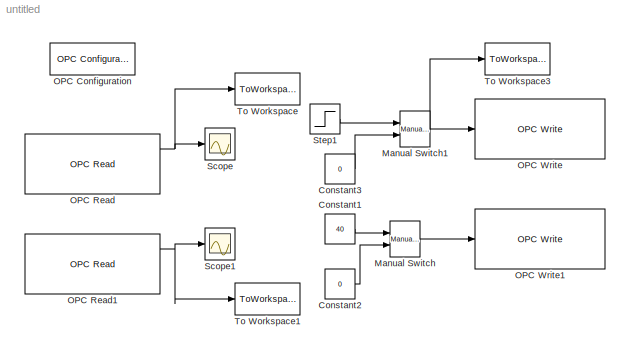
MODEL untitled
KIND model
BLOCK [Constant] Constant1
  SID = 16
  Value = 40
BLOCK [Constant] Constant2
  SID = 19
  Value = 0
BLOCK [Constant] Constant3
  SID = 21
  Value = 0
BLOCK [Reference] Manual Switch  REF=simulink/Signal\nRouting/Manual Switch
  FunctionWithSeparateData = off
  GeneratePreprocessorConditionals = off
  Ports = [2, 1]
  RTWMemSecDataConstants = Inherit from model
  RTWMemSecDataInternal = Inherit from model
  RTWMemSecDataParameters = Inherit from model
  RTWMemSecFuncExecute = Inherit from model
  RTWMemSecFuncInitTerm = Inherit from model
  SID = 18
  ShowPortLabels = FromPortIcon
  SourceBlock = simulink/Signal\nRouting/Manual Switch
  SourceType = Manual Switch
  SystemSampleTime = -1
  action = 0
  sw = 0
  varsize = off
BLOCK [Reference] Manual Switch1  REF=simulink/Signal\nRouting/Manual Switch
  FunctionWithSeparateData = off
  GeneratePreprocessorConditionals = off
  Ports = [2, 1]
  RTWMemSecDataConstants = Inherit from model
  RTWMemSecDataInternal = Inherit from model
  RTWMemSecDataParameters = Inherit from model
  RTWMemSecFuncExecute = Inherit from model
  RTWMemSecFuncInitTerm = Inherit from model
  SID = 20
  ShowPortLabels = FromPortIcon
  SourceBlock = simulink/Signal\nRouting/Manual Switch
  SourceType = Manual Switch
  SystemSampleTime = -1
  action = 0
  sw = 0
  varsize = off
BLOCK [Reference] OPC Configuration  REF=opclib/OPC Configuration
  Ports = []
  SID = 1
  SourceBlock = opclib/OPC Configuration
  SourceType = OPC Configuration
  beingUsed = on
  errMissingItems = Error
  errRTViolation = Warn
  errReadWrite = Warn
  errShutdown = Error
  opcServers = localhost/OPCServer.WinCC/10
  rtEnable = on
  showLatency = off
  speedup = 1
BLOCK [Reference] OPC Read  REF=opclib/OPC Read
  Ports = [0, 3]
  SID = 2
  SourceBlock = opclib/OPC Read
  SourceType = OPC Read
  dataType = double
  itemIDs = shuiwei1
  readMode = Synchronous (cache)
  serverHost = localhost
  serverID = OPCServer.WinCC
  showQual = on
  showTS = on
  tsMode = Seconds since start
  updateRate = 0.5
BLOCK [Reference] OPC Read1  REF=opclib/OPC Read
  Ports = [0, 3]
  SID = 6
  SourceBlock = opclib/OPC Read
  SourceType = OPC Read
  dataType = double
  itemIDs = shuiwei2
  readMode = Synchronous (cache)
  serverHost = localhost
  serverID = OPCServer.WinCC
  showQual = on
  showTS = on
  tsMode = Seconds since start
  updateRate = 0.5
BLOCK [Reference] OPC Write  REF=opclib/OPC Write
  Ports = [1]
  SID = 3
  SourceBlock = opclib/OPC Write
  SourceType = OPC Write
  itemIDs = beng1
  serverHost = localhost
  serverID = OPCServer.WinCC
  updateRate = 0
  writeMode = Synchronous
BLOCK [Reference] OPC Write1  REF=opclib/OPC Write
  Ports = [1]
  SID = 8
  SourceBlock = opclib/OPC Write
  SourceType = OPC Write
  itemIDs = beng2
  serverHost = localhost
  serverID = OPCServer.WinCC
  updateRate = 0
  writeMode = Synchronous
BLOCK [Scope] Scope
  DataFormat = StructureWithTime
  Floating = off
  NumInputPorts = 1
  Ports = [1]
  SID = 5
  SampleTime = 0
  TimeRange = 100
  YMax = 30
  YMin = 0
BLOCK [Scope] Scope1
  DataFormat = StructureWithTime
  Floating = off
  NumInputPorts = 1
  Ports = [1]
  SID = 7
  SampleTime = 0
  SaveName = ScopeData1
  TimeRange = 100
  YMax = 30
  YMin = 0
BLOCK [Step] Step1
  After = 50
  Before = 40
  SID = 15
  Time = 600
BLOCK [ToWorkspace] To Workspace
  MaxDataPoints = inf
  Ports = [1]
  SID = 10
  SampleTime = 1
  SaveFormat = Array
  VariableName = waterlevel1
BLOCK [ToWorkspace] To Workspace1
  MaxDataPoints = inf
  Ports = [1]
  SID = 11
  SampleTime = 1
  SaveFormat = Array
  VariableName = waterlevel2
BLOCK [ToWorkspace] To Workspace3
  MaxDataPoints = inf
  Ports = [1]
  SID = 17
  SampleTime = 1
  SaveFormat = Array
  VariableName = u1
LINE Constant1:1 -> Manual Switch:1
LINE Constant2:1 -> Manual Switch:2
LINE Constant3:1 -> Manual Switch1:2
NET Manual Switch1:1 -> OPC Write:1, To Workspace3:1
LINE Manual Switch:1 -> OPC Write1:1
NET OPC Read1:1 -> Scope1:1, To Workspace1:1
NET OPC Read:1 -> Scope:1, To Workspace:1
LINE Step1:1 -> Manual Switch1:1
note: NET lines group one-source signal fan-out (src -> all destinations, sorted); 1:1 wires keep LINE
